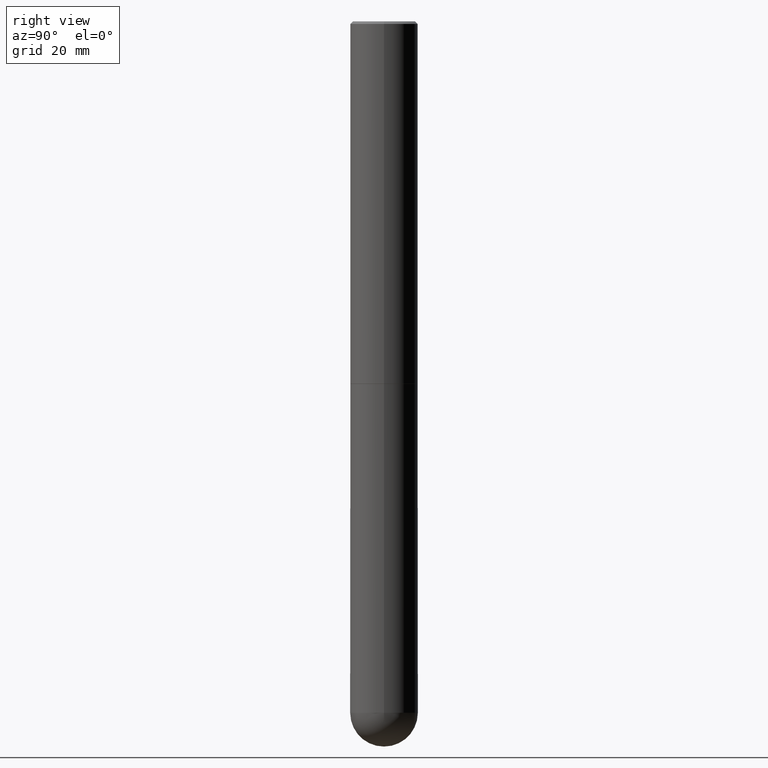
[diagram: clean part render]
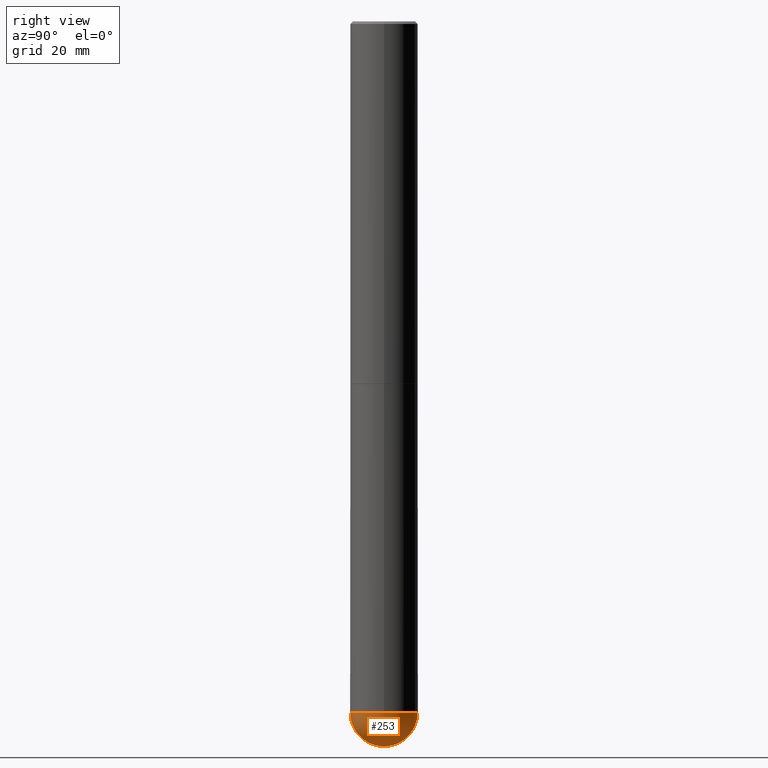
[diagram: same view with one face highlighted and labeled with its STEP entity id]
A machine part, right view. The second image highlights one B-rep face of the part: STEP entity #253.
In plain terms, the highlighted spherical surface has radius 7.0002 mm.
Its self-contained STEP definition (entity closure, byte-faithful):
#39 = DIRECTION ( 'NONE',  ( 1.000000000000000000, -6.982962677686264344E-15, 0.000000000000000000 ) ) ;
#61 = EDGE_CURVE ( 'NONE', #329, #137, #275, .T. ) ;
#105 = CARTESIAN_POINT ( 'NONE',  ( 1.376774483194169922E-28, -1.965669078955302449E-14, -5.629900000000000126 ) ) ;
#111 = FACE_OUTER_BOUND ( 'NONE', #158, .T. ) ;
#129 = DIRECTION ( 'NONE',  ( -1.000000000000000000, 7.105427357601001070E-15, -4.926315508542082329E-29 ) ) ;
#130 = CIRCLE ( 'NONE', #351, 0.2756000000000000671 ) ;
#136 = ORIENTED_EDGE ( 'NONE', *, *, #201, .F. ) ;
#137 = VERTEX_POINT ( 'NONE', #310 ) ;
#140 = DIRECTION ( 'NONE',  ( 6.982962677686267499E-15, 1.000000000000000000, 0.000000000000000000 ) ) ;
#142 = CARTESIAN_POINT ( 'NONE',  ( 1.412238044847732931E-28, -2.107624978178599697E-14, -5.905499999999999972 ) ) ;
#158 = EDGE_LOOP ( 'NONE', ( #323, #401, #210, #136 ) ) ;
#165 = SPHERICAL_SURFACE ( 'NONE', #221, 0.2756000000000000671 ) ;
#178 = AXIS2_PLACEMENT_3D ( 'NONE', #373, #129, #346 ) ;
#201 = EDGE_CURVE ( 'NONE', #137, #317, #130, .T. ) ;
#205 = AXIS2_PLACEMENT_3D ( 'NONE', #356, #354, #140 ) ;
#210 = ORIENTED_EDGE ( 'NONE', *, *, #318, .F. ) ;
#221 = AXIS2_PLACEMENT_3D ( 'NONE', #355, #289, #391 ) ;
#227 = DIRECTION ( 'NONE',  ( -2.445468806185136597E-29, 3.491481338843145583E-15, 1.000000000000000000 ) ) ;
#234 = CARTESIAN_POINT ( 'NONE',  ( 1.376774483194169922E-28, -1.965669078955302449E-14, -5.629900000000000126 ) ) ;
#253 = ADVANCED_FACE ( 'NONE', ( #111 ), #165, .T. ) ;
#259 = CARTESIAN_POINT ( 'NONE',  ( 1.924504513970471427E-15, 0.2755999999999801942, -5.629900000000001015 ) ) ;
#261 = CIRCLE ( 'NONE', #205, 0.2756000000000000671 ) ;
#275 = CIRCLE ( 'NONE', #178, 0.2756000000000000671 ) ;
#289 = DIRECTION ( 'NONE',  ( -1.000000000000000000, 6.982962677686265922E-15, -4.883557194083112901E-29 ) ) ;
#291 = EDGE_CURVE ( 'NONE', #329, #333, #261, .T. ) ;
#310 = CARTESIAN_POINT ( 'NONE',  ( -1.958255779754700116E-15, -0.2756000000000199956, -5.629899999999999238 ) ) ;
#317 = VERTEX_POINT ( 'NONE', #328 ) ;
#318 = EDGE_CURVE ( 'NONE', #317, #333, #372, .T. ) ;
#323 = ORIENTED_EDGE ( 'NONE', *, *, #61, .F. ) ;
#328 = CARTESIAN_POINT ( 'NONE',  ( 0.2756000000000000671, -1.690749838334792865E-14, -5.629900000000000126 ) ) ;
#329 = VERTEX_POINT ( 'NONE', #142 ) ;
#333 = VERTEX_POINT ( 'NONE', #259 ) ;
#346 = DIRECTION ( 'NONE',  ( -7.105427357601001859E-15, -1.000000000000000000, 0.000000000000000000 ) ) ;
#350 = DIRECTION ( 'NONE',  ( -2.445468806185136597E-29, 3.491481338843145583E-15, 1.000000000000000000 ) ) ;
#351 = AXIS2_PLACEMENT_3D ( 'NONE', #105, #227, #39 ) ;
#354 = DIRECTION ( 'NONE',  ( 1.000000000000000000, -6.982962677686265922E-15, 4.883557194083112340E-29 ) ) ;
#355 = CARTESIAN_POINT ( 'NONE',  ( 1.343662505402781410E-28, -2.013087315769307636E-14, -5.629900000000000126 ) ) ;
#356 = CARTESIAN_POINT ( 'NONE',  ( 1.343662505402781410E-28, -2.013087315769307636E-14, -5.629900000000000126 ) ) ;
#372 = CIRCLE ( 'NONE', #390, 0.2756000000000000671 ) ;
#373 = CARTESIAN_POINT ( 'NONE',  ( 1.343662505402781410E-28, -2.013087315769307636E-14, -5.629900000000000126 ) ) ;
#390 = AXIS2_PLACEMENT_3D ( 'NONE', #234, #350, #392 ) ;
#391 = DIRECTION ( 'NONE',  ( 6.982962677686265922E-15, 1.000000000000000000, -3.964946289788479319E-15 ) ) ;
#392 = DIRECTION ( 'NONE',  ( 1.000000000000000000, -6.982962677686264344E-15, 0.000000000000000000 ) ) ;
#401 = ORIENTED_EDGE ( 'NONE', *, *, #291, .T. ) ;